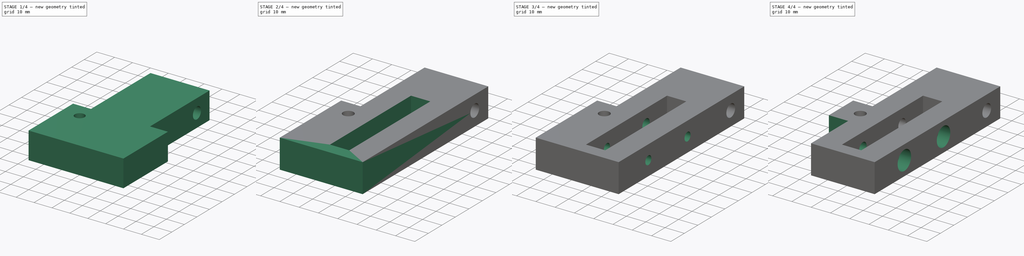
[diagram: build sequence overview — one tinted view per stage of 4, left to right]
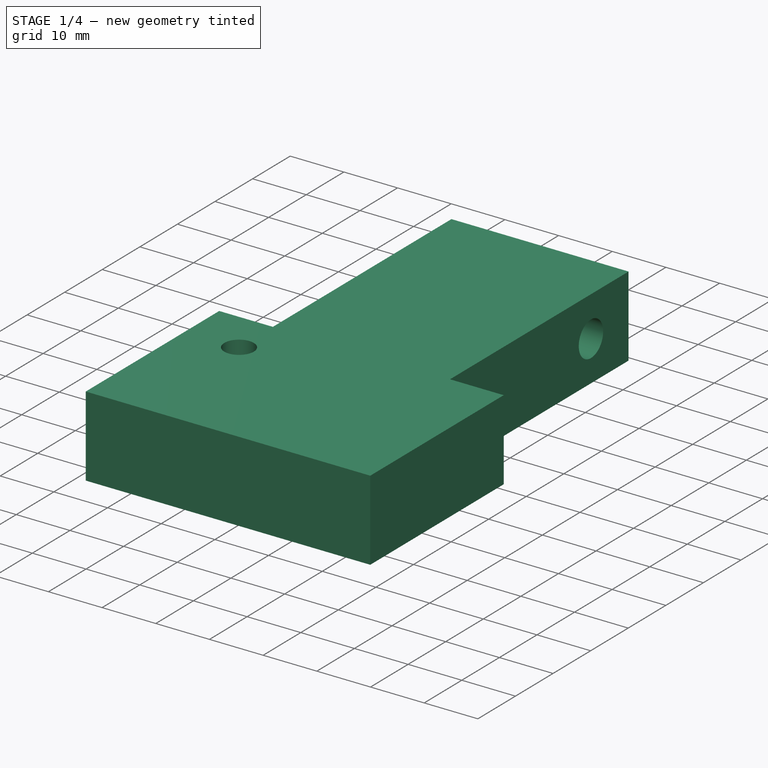
[diagram: stage 1 of 4 — iso view after this stage's code; geometry added in this stage tinted green]
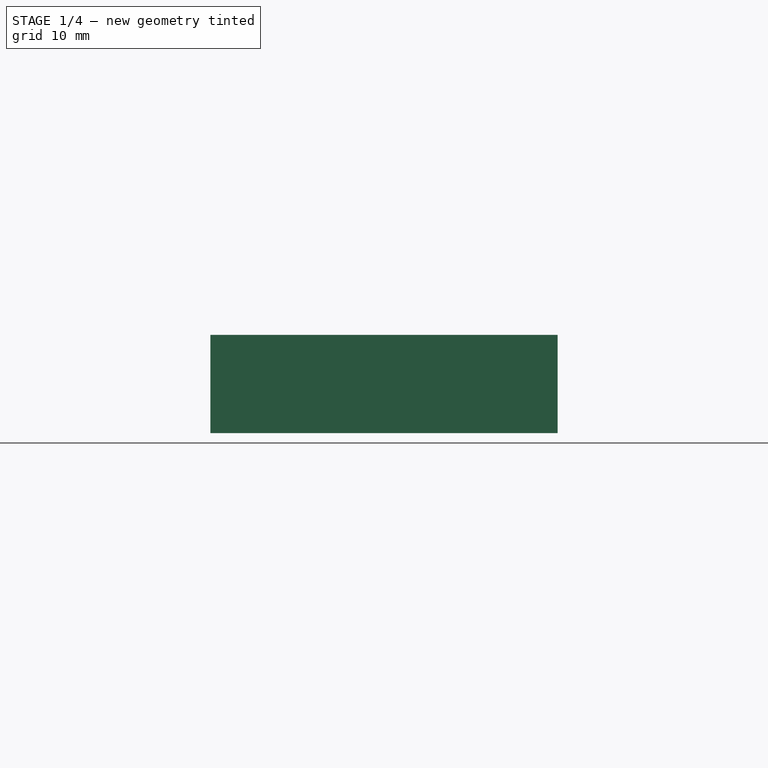
[diagram: stage 1 of 4 — front view after this stage's code; geometry added in this stage tinted green]
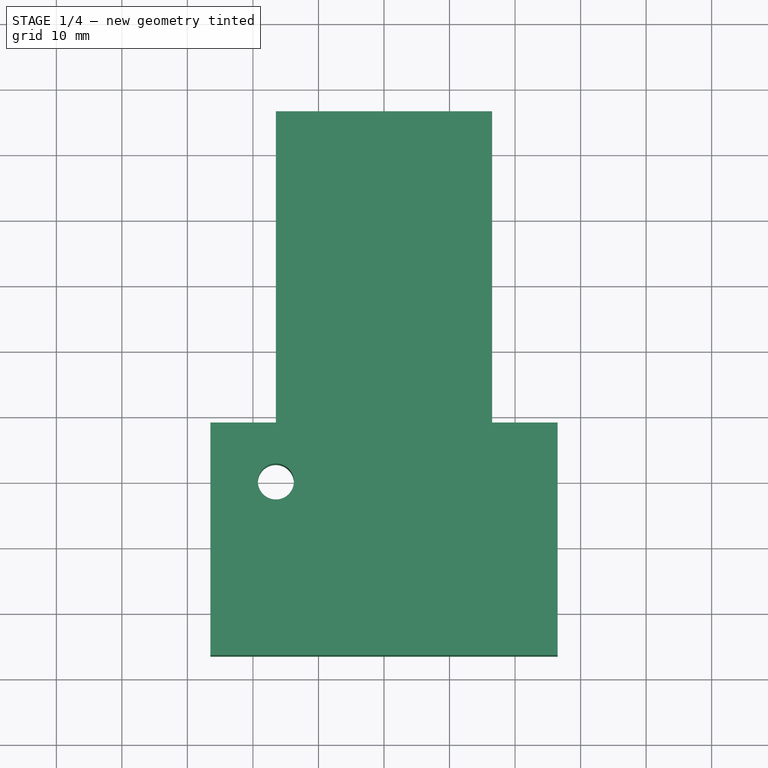
[diagram: stage 1 of 4 — top view after this stage's code; geometry added in this stage tinted green]
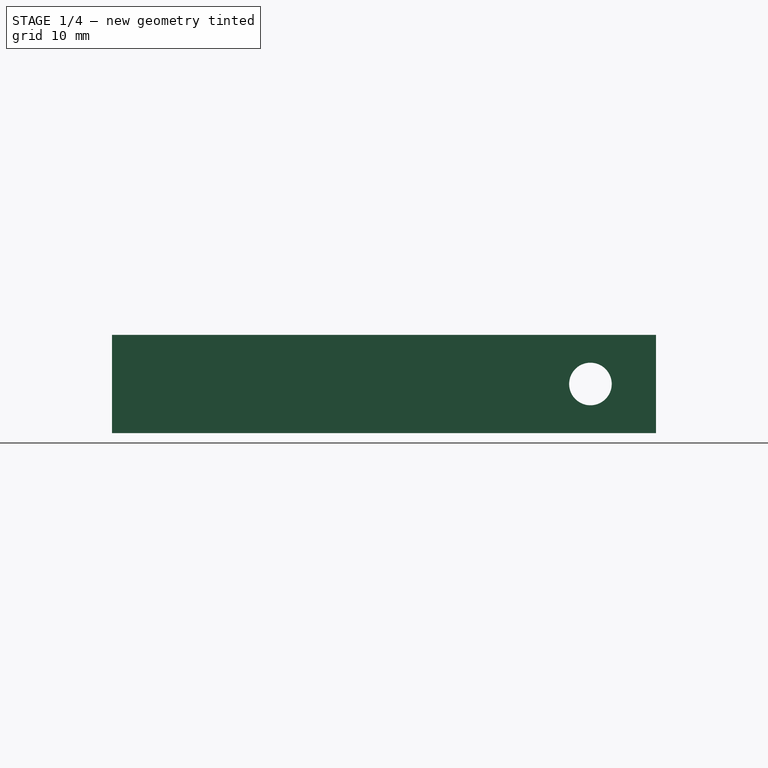
[diagram: stage 1 of 4 — right view after this stage's code; geometry added in this stage tinted green]
FCSTD DOCUMENT  (FreeCAD 1.0R39109 (Git))
Label: ARM_SideTarget_BottomMount-Tensioner_V1
License: All rights reserved
LicenseURL: https://en.wikipedia.org/wiki/All_rights_reserved
objects: Sketcher::SketchObject×10, PartDesign::Pocket×9, PartDesign::Pad×2, PartDesign::Body×1
note: 54 computed .brp shape members not serialized (recipe doc carries the construction recipe); baked Part::Feature solids carry a one-line shape summary decoded from their .brp

FEATURE [Sketcher::SketchObject] Sketch
  ArcFitTolerance = 1e-06
  AttachmentSupport = -> [XY_Plane]
  FullyConstrained = true
  MakeInternals = false
  MapMode = 5
  sketch-geometry (25):
    g0: LineSegment [constr] StartX=-26.5 StartY=-26.5 StartZ=0 EndX=26.5 EndY=-26.5 EndZ=0
    g1: LineSegment [constr] StartX=26.5 StartY=-26.5 StartZ=0 EndX=26.5 EndY=26.5 EndZ=0
    g2: LineSegment [constr] StartX=26.5 StartY=26.5 StartZ=0 EndX=-26.5 EndY=26.5 EndZ=0
    g3: LineSegment [constr] StartX=-26.5 StartY=26.5 StartZ=0 EndX=-26.5 EndY=-26.5 EndZ=0
    g4: GeomPoint [constr] X=0 Y=0 Z=0
    g5: LineSegment [constr] StartX=-26.5 StartY=26.5 StartZ=0 EndX=26.5 EndY=26.5 EndZ=0
    g6: LineSegment [constr] StartX=26.5 StartY=26.5 StartZ=0 EndX=26.5 EndY=56.5 EndZ=0
    g7: LineSegment [constr] StartX=26.5 StartY=56.5 StartZ=0 EndX=-26.5 EndY=56.5 EndZ=0
    g8: LineSegment [constr] StartX=-26.5 StartY=56.5 StartZ=0 EndX=-26.5 EndY=26.5 EndZ=0
    g9: LineSegment [constr] StartX=-26.5 StartY=56.5 StartZ=0 EndX=-26.5 EndY=9 EndZ=0
    g10: LineSegment [constr] StartX=-26.5 StartY=9 StartZ=0 EndX=-16.5 EndY=9 EndZ=0
    g11: LineSegment [constr] StartX=-16.5 StartY=9 StartZ=0 EndX=-16.5 EndY=56.5 EndZ=0
    g12: LineSegment [constr] StartX=-16.5 StartY=56.5 StartZ=0 EndX=-26.5 EndY=56.5 EndZ=0
    g13: LineSegment [constr] StartX=26.5 StartY=56.5 StartZ=0 EndX=16.5 EndY=56.5 EndZ=0
    g14: LineSegment [constr] StartX=16.5 StartY=56.5 StartZ=0 EndX=16.5 EndY=9 EndZ=0
    g15: LineSegment [constr] StartX=16.5 StartY=9 StartZ=0 EndX=26.5 EndY=9 EndZ=0
    g16: LineSegment [constr] StartX=26.5 StartY=9 StartZ=0 EndX=26.5 EndY=56.5 EndZ=0
    g17: LineSegment StartX=-16.5 StartY=56.5 StartZ=0 EndX=-16.5 EndY=9 EndZ=0
    g18: LineSegment StartX=-16.5 StartY=9 StartZ=0 EndX=-26.5 EndY=9 EndZ=0
    g19: LineSegment StartX=-26.5 StartY=9 StartZ=0 EndX=-26.5 EndY=-26.5 EndZ=0
    g20: LineSegment StartX=-26.5 StartY=-26.5 StartZ=0 EndX=26.5 EndY=-26.5 EndZ=0
    g21: LineSegment StartX=26.5 StartY=-26.5 StartZ=0 EndX=26.5 EndY=9 EndZ=0
    g22: LineSegment StartX=26.5 StartY=9 StartZ=0 EndX=16.5 EndY=9 EndZ=0
    g23: LineSegment StartX=16.5 StartY=9 StartZ=0 EndX=16.5 EndY=56.5 EndZ=0
    g24: LineSegment StartX=16.5 StartY=56.5 StartZ=0 EndX=-16.5 EndY=56.5 EndZ=0
  constraints (61):
    c: Coincident(g0,g1)
    c: Coincident(g1,g2)
    c: Coincident(g2,g3)
    c: Coincident(g3,g0)
    c: Horizontal(g0)
    c: Horizontal(g2)
    c: Vertical(g1)
    c: Vertical(g3)
    c: Symmetric(g2,g0,g4)
    c: Distance(g1,g3) = 53
    c: Distance(g0,g2) = 53
    c: Coincident(g4,g-1)
    c: Coincident(g5,g6)
    c: Coincident(g6,g7)
    c: Coincident(g7,g8)
    c: Coincident(g8,g5)
    c: Horizontal(g5)
    c: Horizontal(g7)
    c: Vertical(g6)
    c: Vertical(g8)
    c: Distance(g6,g8) = 53
    c: Distance(g5,g7) = 30
    c: Coincident(g5,g2)
    c: Coincident(g9,g10)
    c: Coincident(g10,g11)
    c: Coincident(g11,g12)
    c: Coincident(g12,g9)
    c: Vertical(g9)
    c: Vertical(g11)
    c: Horizontal(g10)
    c: Horizontal(g12)
    c: Distance(g9,g11) = 10
    c: Distance(g10,g12) = 47.5
    c: Coincident(g9,g7)
    c: Coincident(g13,g14)
    c: Coincident(g14,g15)
    c: Coincident(g15,g16)
    c: Coincident(g16,g13)
    c: Horizontal(g13)
    c: Horizontal(g15)
    c: Vertical(g14)
    c: Vertical(g16)
    c: Distance(g14,g16) = 10
    c: Distance(g13,g15) = 47.5
    c: Coincident(g13,g6)
    c: Coincident(g17,g11)
    c: Coincident(g17,g10)
    c: Coincident(g18,g10)
    c: Coincident(g18,g9)
    c: Coincident(g19,g9)
    c: Coincident(g19,g0)
    c: Coincident(g20,g0)
    c: Coincident(g20,g0)
    c: Coincident(g21,g0)
    c: Coincident(g21,g15)
    c: Coincident(g22,g15)
    c: Coincident(g22,g14)
    c: Coincident(g23,g14)
    c: Coincident(g23,g13)
    c: Coincident(g24,g13)
    c: Coincident(g24,g11)
FEATURE [PartDesign::Pad] Pad
  Direction = (0,0,1)
  Length = 15
  Length2 = 10
  Profile = -> Sketch
  ReferenceAxis = -> Sketch [N_Axis]
  Refine = true
  Suppressed = false
  Type = 0
FEATURE [Sketcher::SketchObject] Sketch001
  ArcFitTolerance = 1e-06
  AttachmentSupport = -> [Pad]
  ExternalGeometry = -> [Pad]
  FullyConstrained = true
  MakeInternals = false
  MapMode = 5
  Placement = pos=(16.5,0,0) rot=(0.57735,0.57735,0.57735;2.0944rad)
  sketch-geometry (2):
    g0: LineSegment [constr] StartX=56.5 StartY=7.5 StartZ=0 EndX=46.5 EndY=7.5 EndZ=0
    g1: Circle CenterX=46.5 CenterY=7.5 CenterZ=0 NormalX=0 NormalY=0 NormalZ=1 AngleXU=0 Radius=3.25
  constraints (5):
    c: Distance(g0) = 10
    c: Symmetric(g-3,g-3,g0)
    c: Horizontal(g0)
    c: Diameter(g1) = 6.5
    c: Coincident(g1,g0)
FEATURE [PartDesign::Pocket] Pocket
  BaseFeature = -> Pad
  Direction = (-1,0,0)
  Length = 40
  Length2 = 5
  Profile = -> Sketch001
  ReferenceAxis = -> Sketch001 [N_Axis]
  Refine = true
  Suppressed = false
  Type = 0
FEATURE [Sketcher::SketchObject] Sketch002
  ArcFitTolerance = 1e-06
  AttachmentSupport = -> [Pocket]
  ExternalGeometry = -> [Pocket]
  FullyConstrained = true
  MakeInternals = false
  MapMode = 5
  Placement = pos=(0,0,15) rot=(0,0,1;0rad)
  sketch-geometry (5):
    g0: LineSegment [constr] StartX=-26.5 StartY=9 StartZ=0 EndX=-26.5 EndY=-1.8e-15 EndZ=0
    g1: LineSegment [constr] StartX=-26.5 StartY=-1.8e-15 StartZ=0 EndX=-16.5 EndY=-1.8e-15 EndZ=0
    g2: LineSegment [constr] StartX=-16.5 StartY=-1.8e-15 StartZ=0 EndX=-16.5 EndY=9 EndZ=0
    g3: LineSegment [constr] StartX=-16.5 StartY=9 StartZ=0 EndX=-26.5 EndY=9 EndZ=0
    g4: Circle CenterX=-16.5 CenterY=-1.8e-15 CenterZ=0 NormalX=0 NormalY=0 NormalZ=1 AngleXU=0 Radius=2.75
  constraints (13):
    c: Coincident(g0,g1)
    c: Coincident(g1,g2)
    c: Coincident(g2,g3)
    c: Coincident(g3,g0)
    c: Vertical(g0)
    c: Vertical(g2)
    c: Horizontal(g1)
    c: Horizontal(g3)
    c: Distance(g0,g2) = 10
    c: Distance(g1,g3) = 9
    c: Coincident(g0,g-5)
    c: Diameter(g4) = 5.5
    c: Coincident(g4,g1)
FEATURE [PartDesign::Pocket] Pocket001
  BaseFeature = -> Pocket
  Direction = (0,0,-1)
  Length = 20
  Length2 = 5
  Profile = -> Sketch002
  ReferenceAxis = -> Sketch002 [N_Axis]
  Refine = true
  Suppressed = false
  Type = 0
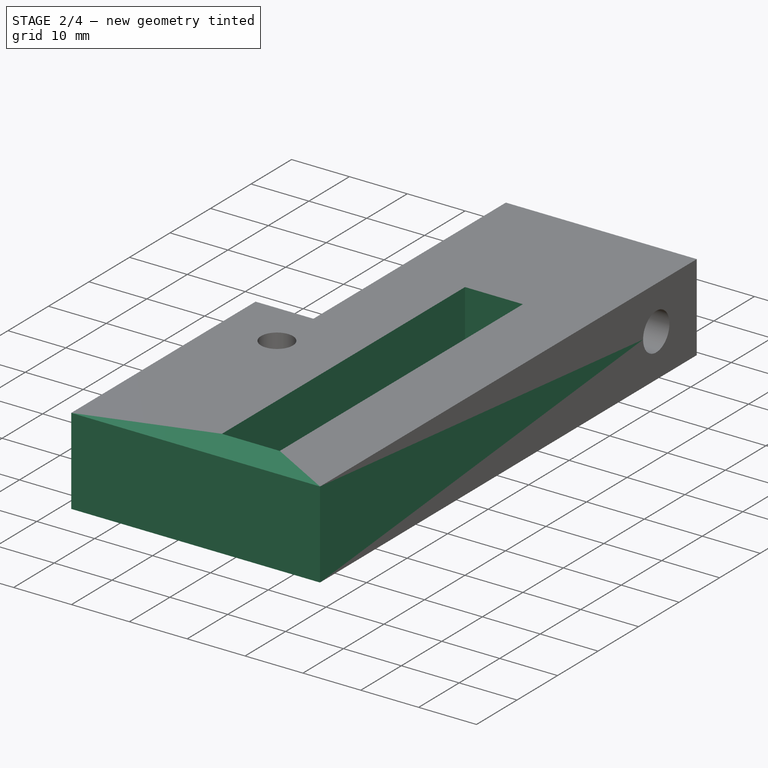
[diagram: stage 2 of 4 — iso view after this stage's code; geometry added in this stage tinted green]
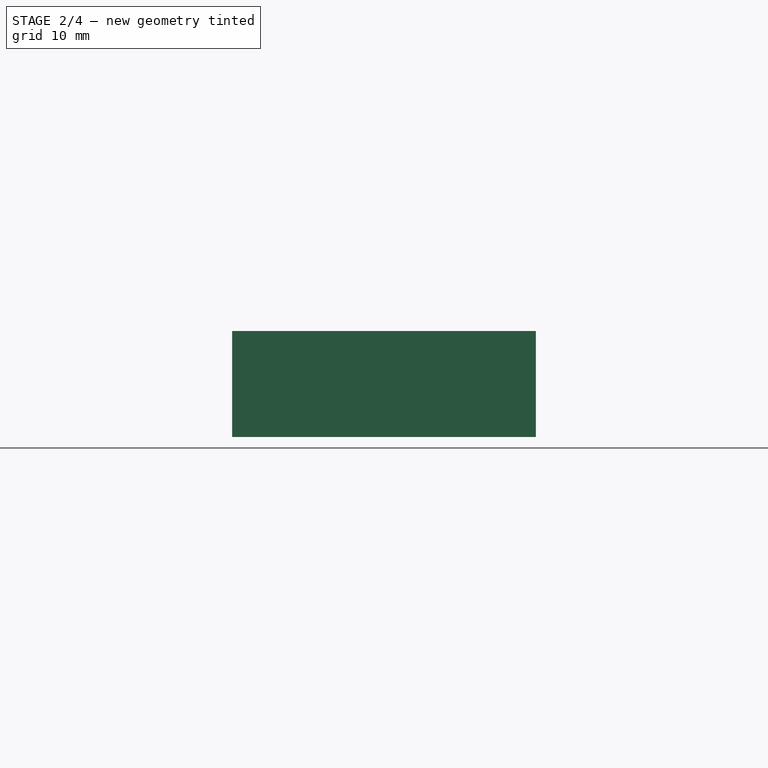
[diagram: stage 2 of 4 — front view after this stage's code; geometry added in this stage tinted green]
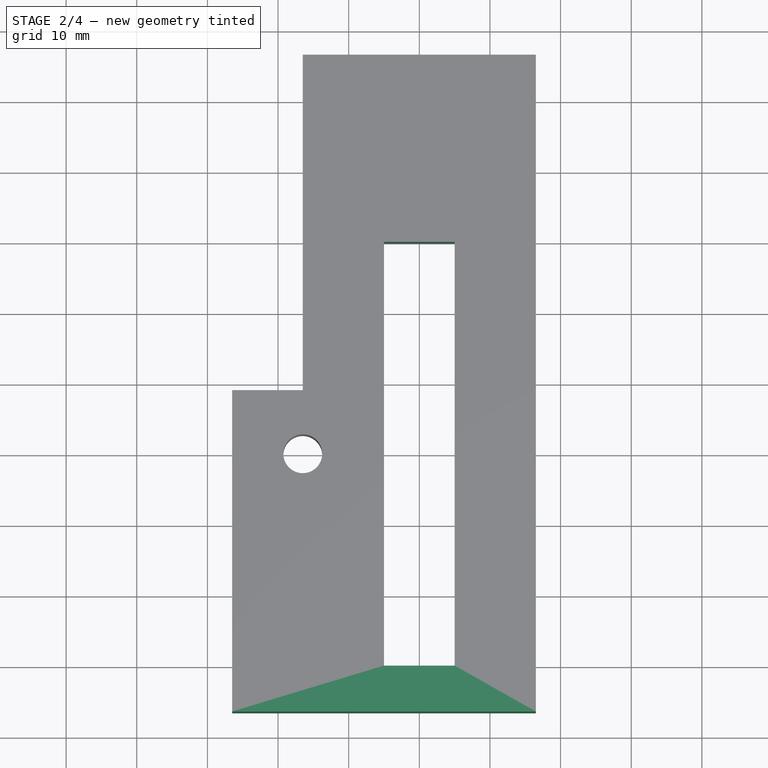
[diagram: stage 2 of 4 — top view after this stage's code; geometry added in this stage tinted green]
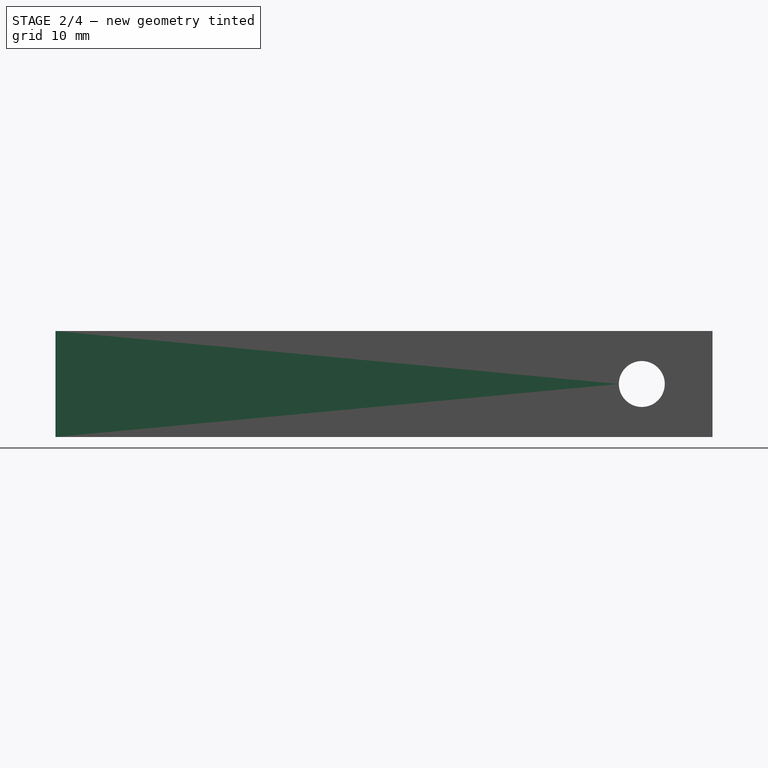
[diagram: stage 2 of 4 — right view after this stage's code; geometry added in this stage tinted green]
FEATURE [PartDesign::Pad] Pad001
  BaseFeature = -> Pocket001
  Direction = (0,-1,0)
  Length = 10
  Length2 = 10
  Profile = -> Pocket001 [Face10]
  Refine = true
  Suppressed = false
  Type = 0
FEATURE [Sketcher::SketchObject] Sketch003
  ArcFitTolerance = 1e-06
  AttachmentSupport = -> [Pad001]
  FullyConstrained = true
  MakeInternals = false
  MapMode = 5
  Placement = pos=(0,0,15) rot=(0,0,1;0rad)
  sketch-geometry (22):
    g0: LineSegment [constr] StartX=-19.5 StartY=-19.5 StartZ=0 EndX=19.5 EndY=-19.5 EndZ=0
    g1: LineSegment [constr] StartX=19.5 StartY=-19.5 StartZ=0 EndX=19.5 EndY=19.5 EndZ=0
    g2: LineSegment [constr] StartX=19.5 StartY=19.5 StartZ=0 EndX=-19.5 EndY=19.5 EndZ=0
    g3: LineSegment [constr] StartX=-19.5 StartY=19.5 StartZ=0 EndX=-19.5 EndY=-19.5 EndZ=0
    g4: GeomPoint [constr] X=0 Y=0 Z=0
    g5: LineSegment [constr] StartX=0 StartY=-19.5 StartZ=0 EndX=0 EndY=-14.5 EndZ=0
    g6: LineSegment [constr] StartX=0 StartY=19.5 StartZ=0 EndX=0 EndY=14.5 EndZ=0
    g7: LineSegment [constr] StartX=-5 StartY=-24.5 StartZ=0 EndX=5 EndY=-24.5 EndZ=0
    g8: LineSegment [constr] StartX=5 StartY=-24.5 StartZ=0 EndX=5 EndY=-4.5 EndZ=0
    g9: LineSegment [constr] StartX=5 StartY=-4.5 StartZ=0 EndX=-5 EndY=-4.5 EndZ=0
    g10: LineSegment [constr] StartX=-5 StartY=-4.5 StartZ=0 EndX=-5 EndY=-24.5 EndZ=0
    g11: GeomPoint [constr] X=0 Y=-14.5 Z=0
    g12: LineSegment [constr] StartX=-5 StartY=4.5 StartZ=0 EndX=5 EndY=4.5 EndZ=0
    g13: LineSegment [constr] StartX=5 StartY=4.5 StartZ=0 EndX=5 EndY=24.5 EndZ=0
    g14: LineSegment [constr] StartX=5 StartY=24.5 StartZ=0 EndX=-5 EndY=24.5 EndZ=0
    g15: LineSegment [constr] StartX=-5 StartY=24.5 StartZ=0 EndX=-5 EndY=4.5 EndZ=0
    g16: GeomPoint [constr] X=0 Y=14.5 Z=0
    g17: LineSegment StartX=-5 StartY=-30 StartZ=0 EndX=5 EndY=-30 EndZ=0
    g18: LineSegment StartX=5 StartY=-30 StartZ=0 EndX=5 EndY=30 EndZ=0
    g19: LineSegment StartX=5 StartY=30 StartZ=0 EndX=-5 EndY=30 EndZ=0
    g20: LineSegment StartX=-5 StartY=30 StartZ=0 EndX=-5 EndY=-30 EndZ=0
    g21: GeomPoint [constr] X=0 Y=0 Z=0
  constraints (54):
    c: Coincident(g0,g1)
    c: Coincident(g1,g2)
    c: Coincident(g2,g3)
    c: Coincident(g3,g0)
    c: Horizontal(g0)
    c: Horizontal(g2)
    c: Vertical(g1)
    c: Vertical(g3)
    c: Symmetric(g2,g0,g4)
    c: Distance(g1,g3) = 39
    c: Distance(g0,g2) = 39
    c: Coincident(g4,g-1)
    c: Distance(g5) = 5
    c: Symmetric(g0,g0,g5)
    c: PointOnObject(g5,g-2)
    c: Distance(g6) = 5
    c: Symmetric(g2,g2,g6)
    c: PointOnObject(g6,g-2)
    c: Coincident(g7,g8)
    c: Coincident(g8,g9)
    c: Coincident(g9,g10)
    c: Coincident(g10,g7)
    c: Horizontal(g7)
    c: Horizontal(g9)
    c: Vertical(g8)
    c: Vertical(g10)
    c: Symmetric(g9,g7,g11)
    c: Distance(g8,g10) = 10
    c: Distance(g7,g9) = 20
    c: Coincident(g11,g5)
    c: Coincident(g12,g13)
    c: Coincident(g13,g14)
    c: Coincident(g14,g15)
    c: Coincident(g15,g12)
    c: Horizontal(g12)
    c: Horizontal(g14)
    c: Vertical(g13)
    c: Vertical(g15)
    c: Symmetric(g14,g12,g16)
    c: Distance(g13,g15) = 10
    c: Distance(g12,g14) = 20
    c: Coincident(g16,g6)
    c: Coincident(g17,g18)
    c: Coincident(g18,g19)
    c: Coincident(g19,g20)
    c: Coincident(g20,g17)
    c: Horizontal(g17)
    c: Horizontal(g19)
    c: Vertical(g18)
    c: Vertical(g20)
    c: Symmetric(g19,g17,g21)
    c: Distance(g18,g20) = 10
    c: Distance(g17,g19) = 60
    c: Coincident(g21,g4)
FEATURE [PartDesign::Pocket] Pocket002
  BaseFeature = -> Pad001
  Direction = (0,0,-1)
  Length = 20
  Length2 = 5
  Profile = -> Sketch003
  ReferenceAxis = -> Sketch003 [N_Axis]
  Refine = true
  Suppressed = false
  Type = 0
FEATURE [PartDesign::Pocket] Pocket003
  BaseFeature = -> Pocket002
  Direction = (-1,0,0)
  Length = 10
  Length2 = 5
  Profile = -> Pocket002 [Face11]
  Refine = true
  Suppressed = false
  Type = 0
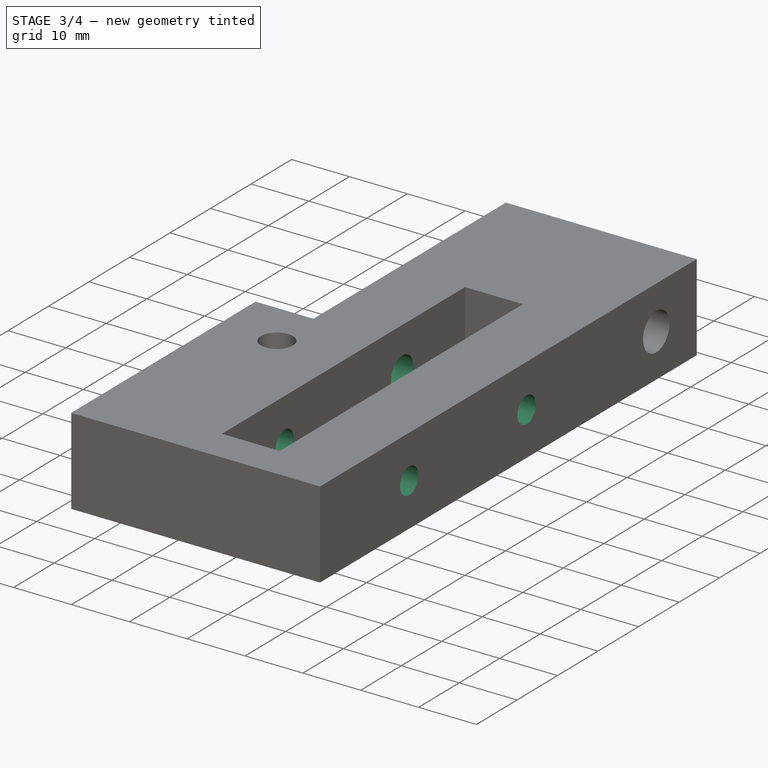
[diagram: stage 3 of 4 — iso view after this stage's code; geometry added in this stage tinted green]
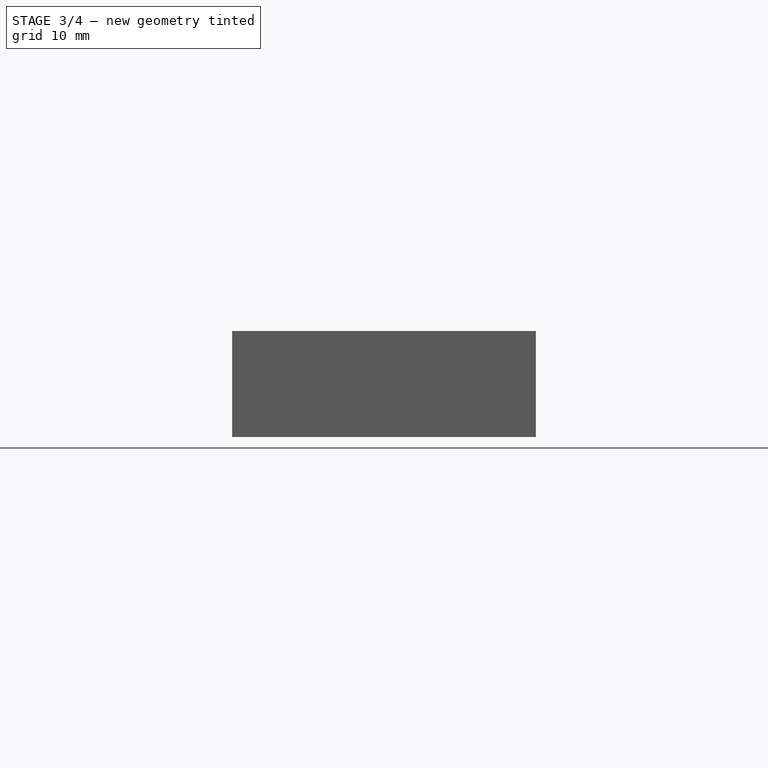
[diagram: stage 3 of 4 — front view after this stage's code; geometry added in this stage tinted green]
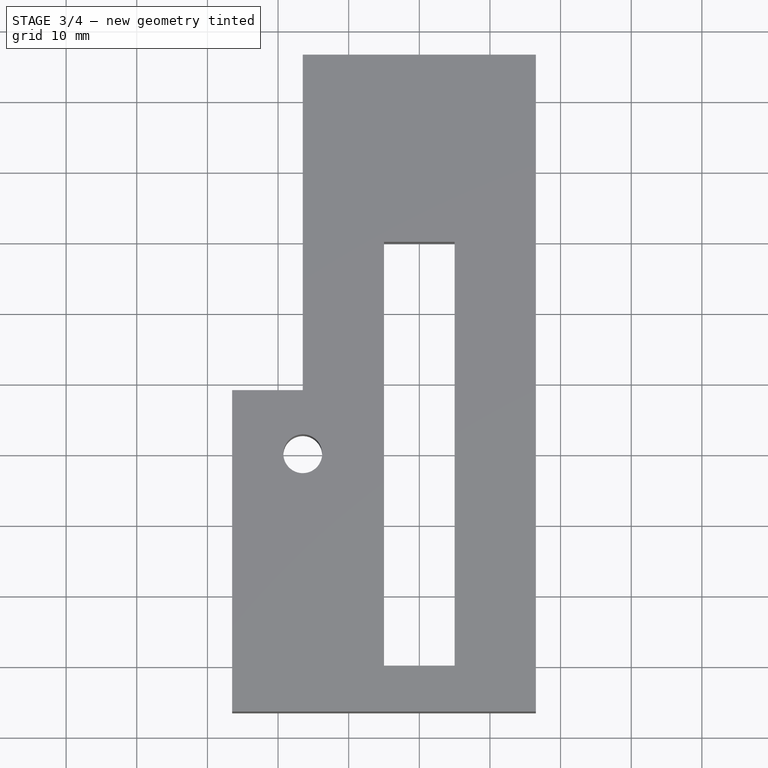
[diagram: stage 3 of 4 — top view after this stage's code; geometry added in this stage tinted green]
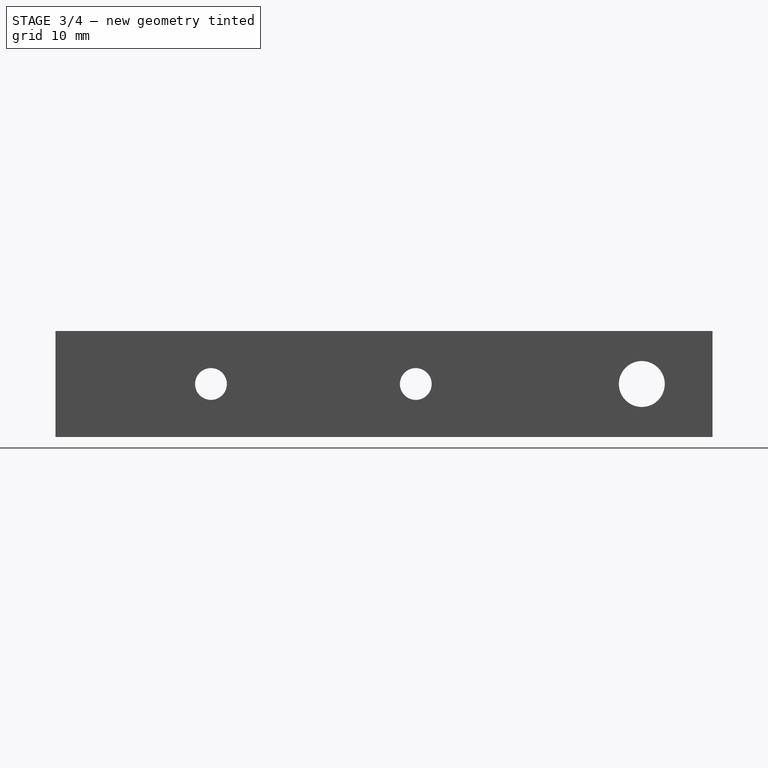
[diagram: stage 3 of 4 — right view after this stage's code; geometry added in this stage tinted green]
FEATURE [Sketcher::SketchObject] Sketch004
  ArcFitTolerance = 1e-06
  AttachmentSupport = -> [Pocket003]
  ExternalGeometry = -> [Pocket003]
  FullyConstrained = true
  MakeInternals = false
  MapMode = 5
  Placement = pos=(16.5,0,0) rot=(0.57735,0.57735,0.57735;2.0944rad)
  sketch-geometry (7):
    g0: LineSegment [constr] StartX=0 StartY=0 StartZ=0 EndX=0 EndY=15 EndZ=0
    g1: LineSegment [constr] StartX=0 StartY=7.5 StartZ=0 EndX=-14.5 EndY=7.5 EndZ=0
    g2: LineSegment [constr] StartX=0 StartY=7.5 StartZ=0 EndX=14.5 EndY=7.5 EndZ=0
    g3: Circle CenterX=-14.5 CenterY=7.5 CenterZ=0 NormalX=0 NormalY=0 NormalZ=1 AngleXU=0 Radius=2.25
    g4: Circle CenterX=14.5 CenterY=7.5 CenterZ=0 NormalX=0 NormalY=0 NormalZ=1 AngleXU=0 Radius=2.25
    g5: Circle [constr] CenterX=-14.5 CenterY=7.5 CenterZ=0 NormalX=0 NormalY=0 NormalZ=1 AngleXU=0 Radius=10
    g6: Circle [constr] CenterX=14.5 CenterY=7.5 CenterZ=0 NormalX=0 NormalY=0 NormalZ=1 AngleXU=0 Radius=10
  constraints (17):
    c: Coincident(g0,g-1)
    c: PointOnObject(g0,g-3)
    c: Vertical(g0)
    c: Distance(g1) = 14.5
    c: Symmetric(g0,g0,g1)
    c: Horizontal(g1)
    c: Distance(g2) = 14.5
    c: Coincident(g2,g1)
    c: Horizontal(g2)
    c: Diameter(g3) = 4.5
    c: Coincident(g3,g1)
    c: Diameter(g4) = 4.5
    c: Coincident(g4,g2)
    c: Diameter(g5) = 20
    c: Coincident(g5,g1)
    c: Diameter(g6) = 20
    c: Coincident(g6,g2)
FEATURE [PartDesign::Pocket] Pocket004
  BaseFeature = -> Pocket003
  Direction = (-1,0,0)
  Length = 100
  Length2 = 5
  Profile = -> Sketch004
  ReferenceAxis = -> Sketch004 [N_Axis]
  Refine = true
  Suppressed = false
  Type = 0
FEATURE [Sketcher::SketchObject] Sketch005
  ArcFitTolerance = 1e-06
  AttachmentSupport = -> [Pocket004]
  ExternalGeometry = -> [Pocket004]
  FullyConstrained = true
  MakeInternals = false
  MapMode = 5
  Placement = pos=(-16.5,0,0) rot=(0.57735,-0.57735,-0.57735;2.0944rad)
  sketch-geometry (1):
    g0: Circle CenterX=-14.5 CenterY=7.5 CenterZ=0 NormalX=0 NormalY=0 NormalZ=1 AngleXU=0 Radius=2.75
  constraints (2):
    c: Diameter(g0) = 5.5
    c: Coincident(g0,g-3)
FEATURE [PartDesign::Pocket] Pocket005
  BaseFeature = -> Pocket004
  Direction = (1,0,0)
  Length = 15
  Length2 = 5
  Profile = -> Sketch005
  ReferenceAxis = -> Sketch005 [N_Axis]
  Refine = true
  Suppressed = false
  Type = 0
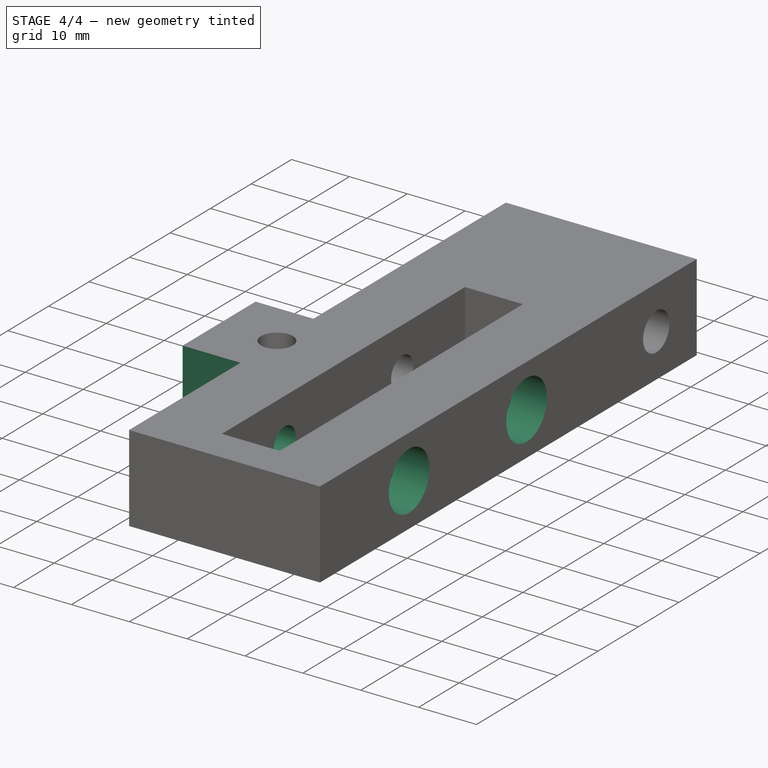
[diagram: stage 4 of 4 — iso view after this stage's code; geometry added in this stage tinted green]
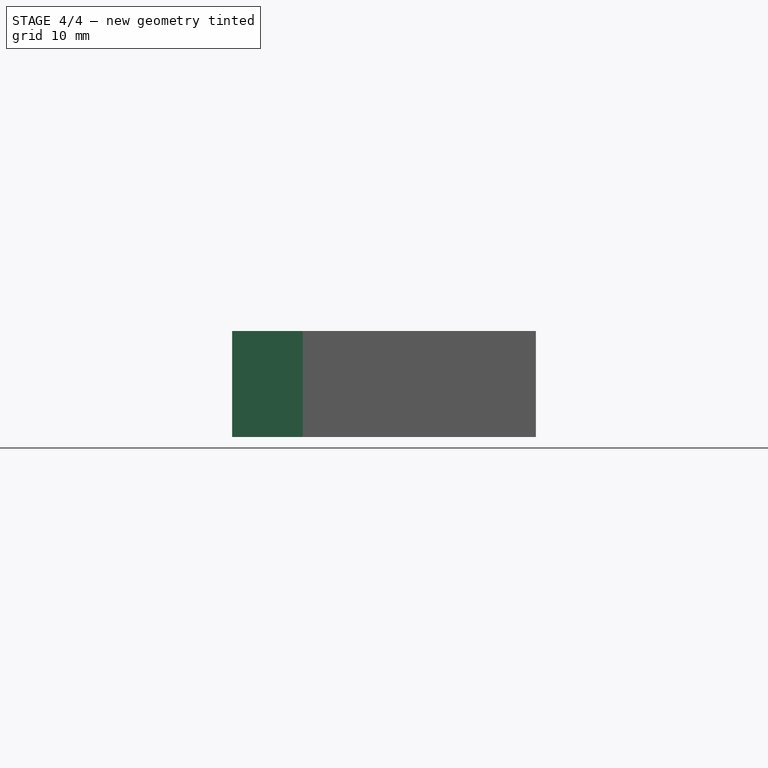
[diagram: stage 4 of 4 — front view after this stage's code; geometry added in this stage tinted green]
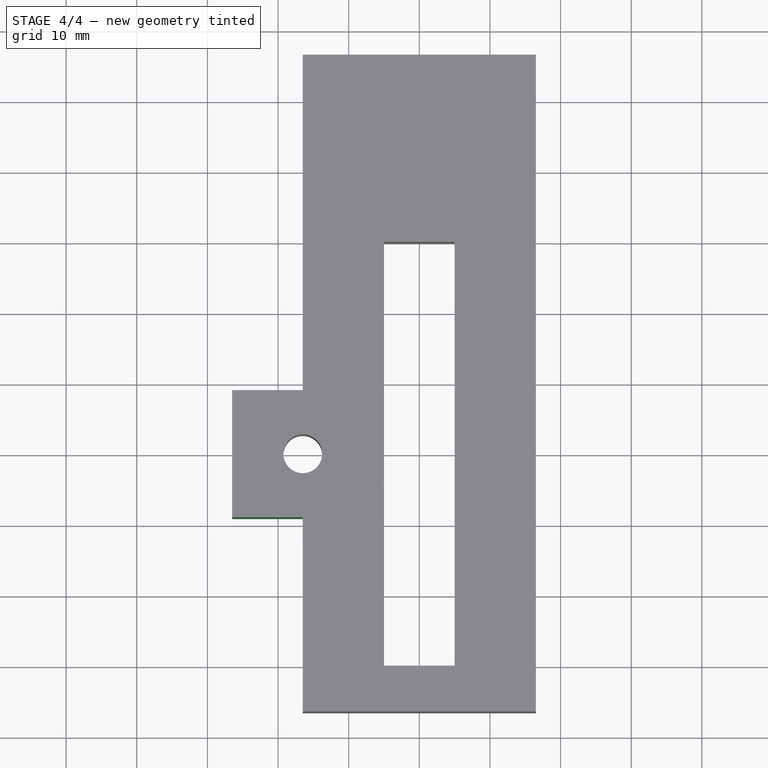
[diagram: stage 4 of 4 — top view after this stage's code; geometry added in this stage tinted green]
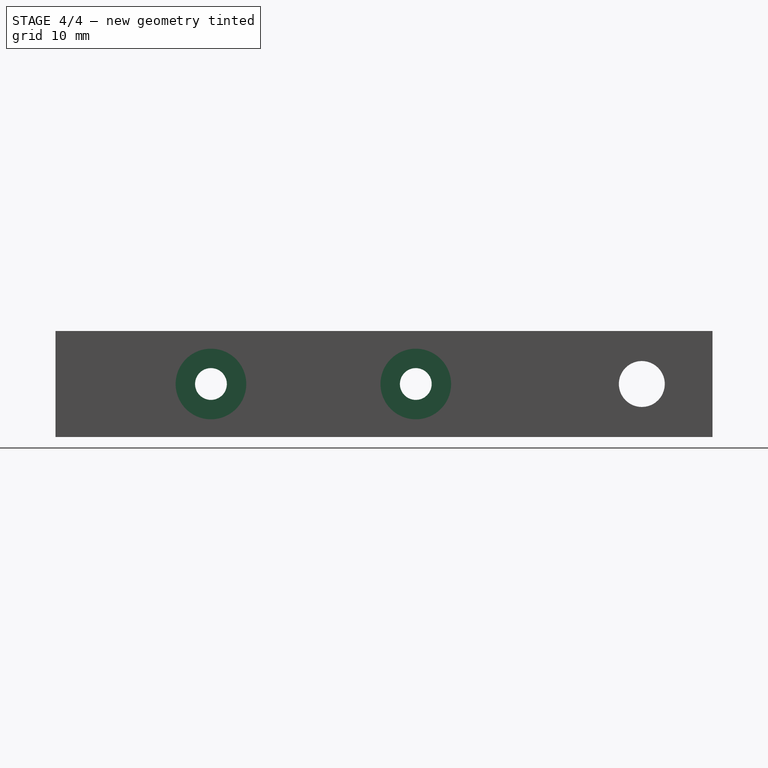
[diagram: stage 4 of 4 — right view after this stage's code; geometry added in this stage tinted green]
FEATURE [Sketcher::SketchObject] Sketch006
  ArcFitTolerance = 1e-06
  AttachmentSupport = -> [Pocket005]
  ExternalGeometry = -> [Pocket005]
  FullyConstrained = true
  MakeInternals = false
  MapMode = 5
  Placement = pos=(-26.5,0,0) rot=(0.57735,-0.57735,-0.57735;2.0944rad)
  sketch-geometry (4):
    g0: LineSegment StartX=36.5 StartY=0 StartZ=0 EndX=36.5 EndY=15 EndZ=0
    g1: LineSegment StartX=36.5 StartY=15 StartZ=0 EndX=9 EndY=15 EndZ=0
    g2: LineSegment StartX=9 StartY=15 StartZ=0 EndX=9 EndY=0 EndZ=0
    g3: LineSegment StartX=9 StartY=0 StartZ=0 EndX=36.5 EndY=0 EndZ=0
  constraints (11):
    c: Coincident(g0,g1)
    c: Coincident(g1,g2)
    c: Coincident(g2,g3)
    c: Coincident(g3,g0)
    c: Vertical(g0)
    c: Vertical(g2)
    c: Horizontal(g1)
    c: Horizontal(g3)
    c: Distance(g0,g2) = 27.5
    c: Distance(g1,g3) = 15
    c: Coincident(g0,g-3)
FEATURE [PartDesign::Pocket] Pocket006
  BaseFeature = -> Pocket005
  Direction = (1,0,0)
  Length = 10
  Length2 = 5
  Profile = -> Sketch006
  ReferenceAxis = -> Sketch006 [N_Axis]
  Refine = true
  Suppressed = false
  Type = 0
FEATURE [Sketcher::SketchObject] Sketch007
  ArcFitTolerance = 1e-06
  AttachmentSupport = -> [Pocket006]
  ExternalGeometry = -> [Pocket006]
  FullyConstrained = true
  MakeInternals = false
  MapMode = 5
  Placement = pos=(-16.5,0,0) rot=(0.57735,-0.57735,-0.57735;2.0944rad)
  sketch-geometry (1):
    g0: Circle CenterX=14.5 CenterY=7.5 CenterZ=0 NormalX=0 NormalY=0 NormalZ=1 AngleXU=0 Radius=2.75
  constraints (2):
    c: Diameter(g0) = 5.5
    c: Coincident(g0,g-3)
FEATURE [PartDesign::Pocket] Pocket007
  BaseFeature = -> Pocket006
  Direction = (1,0,0)
  Length = 15
  Length2 = 5
  Profile = -> Sketch007
  ReferenceAxis = -> Sketch007 [N_Axis]
  Refine = true
  Suppressed = false
  Type = 0
FEATURE [Sketcher::SketchObject] Sketch008
  ArcFitTolerance = 1e-06
  AttachmentSupport = -> [Pocket007]
  ExternalGeometry = -> [Pocket007]
  FullyConstrained = true
  MakeInternals = false
  MapMode = 5
  Placement = pos=(-26.5,0,0) rot=(0.57735,-0.57735,-0.57735;2.0944rad)
FEATURE [Sketcher::SketchObject] Sketch009
  ArcFitTolerance = 1e-06
  AttachmentSupport = -> [Pocket007]
  ExternalGeometry = -> [Pocket007]
  FullyConstrained = true
  MakeInternals = false
  MapMode = 5
  Placement = pos=(16.5,0,0) rot=(0.57735,0.57735,0.57735;2.0944rad)
  sketch-geometry (2):
    g0: Circle CenterX=-14.5 CenterY=7.5 CenterZ=0 NormalX=0 NormalY=0 NormalZ=1 AngleXU=0 Radius=5
    g1: Circle CenterX=14.5 CenterY=7.5 CenterZ=0 NormalX=0 NormalY=0 NormalZ=1 AngleXU=0 Radius=5
  constraints (4):
    c: Diameter(g0) = 10
    c: Coincident(g0,g-4)
    c: Diameter(g1) = 10
    c: Coincident(g1,g-3)
FEATURE [PartDesign::Pocket] Pocket008
  BaseFeature = -> Pocket007
  Direction = (-1,0,0)
  Length = 6
  Length2 = 5
  Profile = -> Sketch009
  ReferenceAxis = -> Sketch009 [N_Axis]
  Refine = true
  Suppressed = false
  Type = 0
FEATURE [PartDesign::Body] Body
  AllowCompound = false
  Group = -> [Sketch,Pad,Sketch001,Pocket,Sketch002,Pocket001,Pad001,Sketch003,Pocket002,Pocket003,Sketch004,Pocket004,Sketch005,Pocket005,Sketch006,Pocket006,Sketch007,Pocket007,Sketch008,Sketch009,Pocket008]
  Origin = -> Origin
  Tip = -> Pocket008
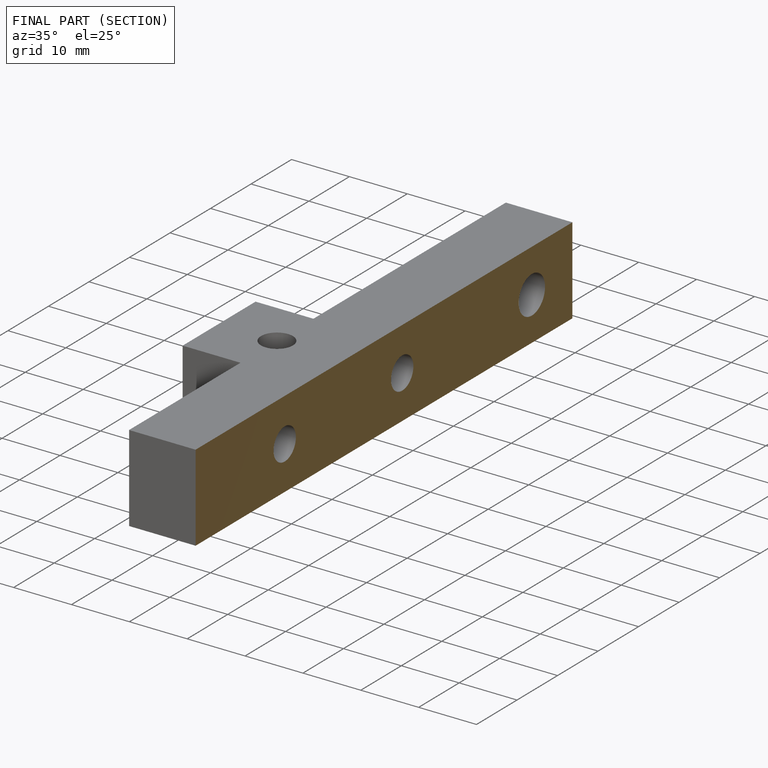
[diagram: finished part — half-section view (interior)]
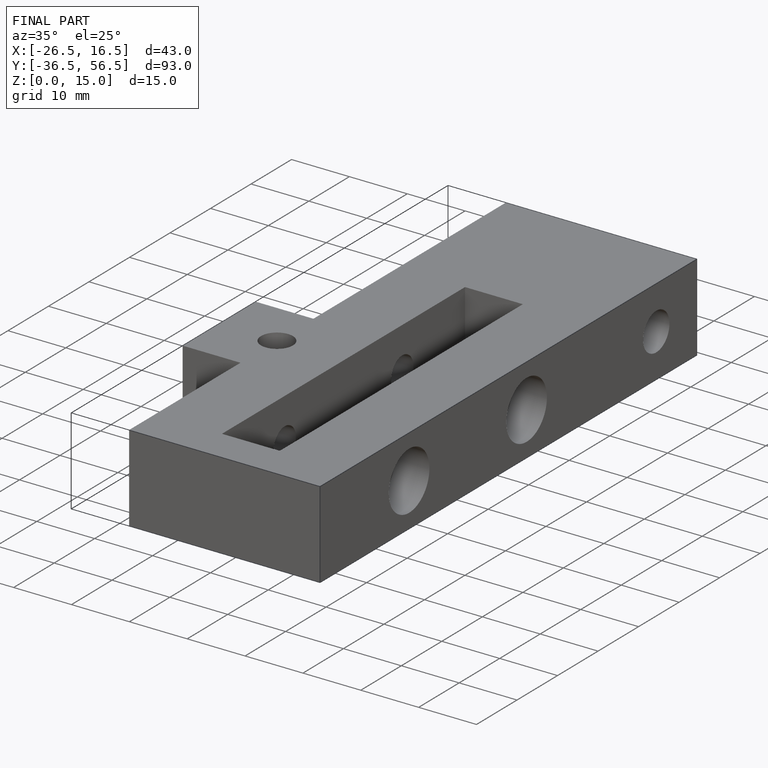
[diagram: finished part — iso view with bounding-box wireframe]
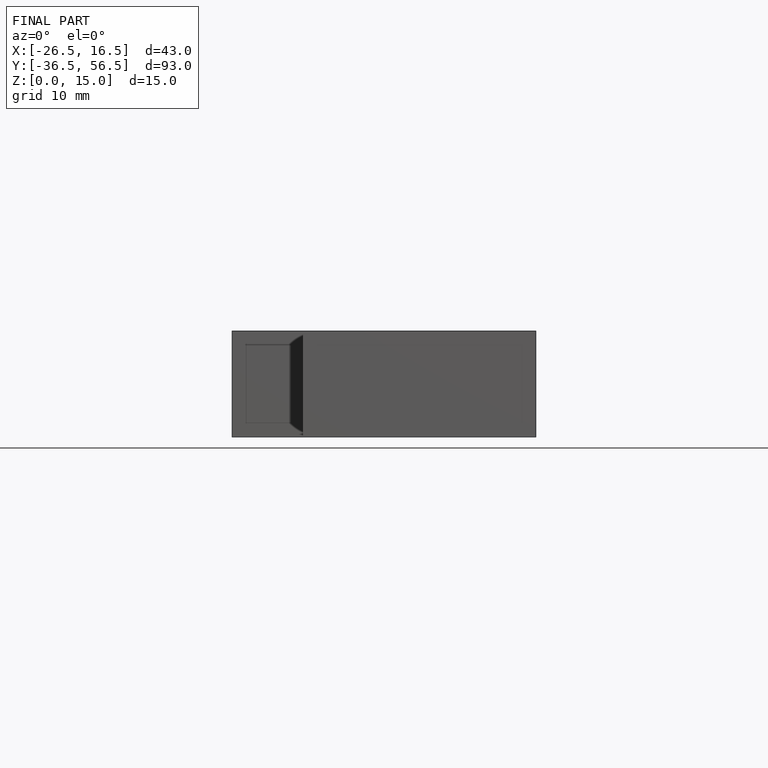
[diagram: finished part — front view with bounding-box wireframe]
